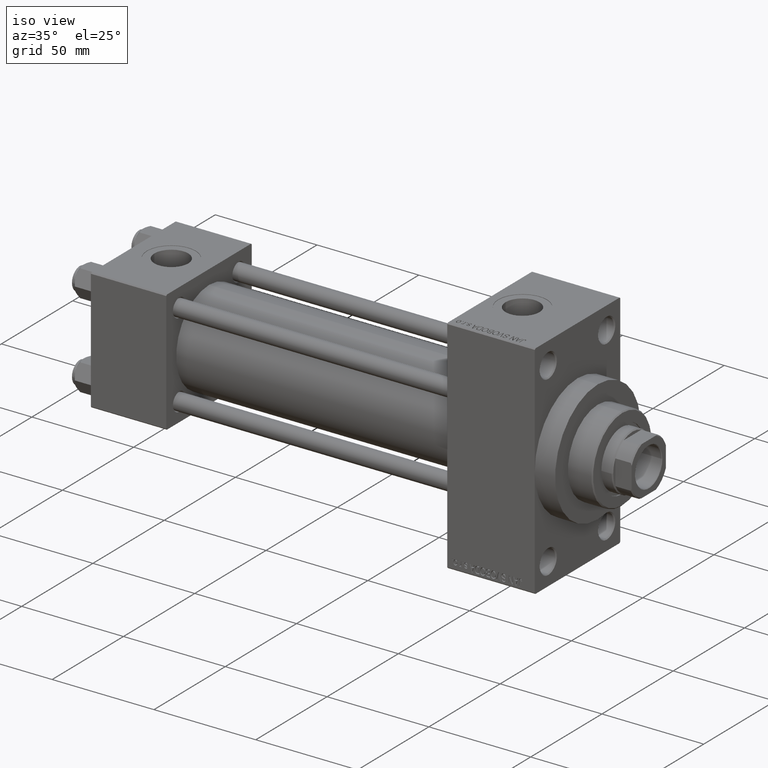
[diagram: clean part render]
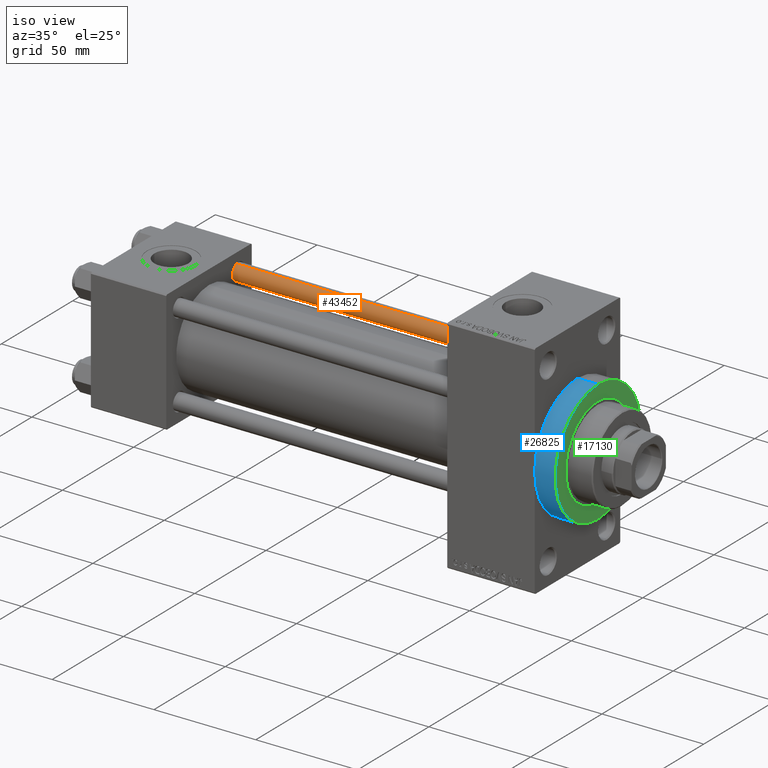
[diagram: same view with three faces highlighted in distinct colors, each labeled with its STEP entity id]
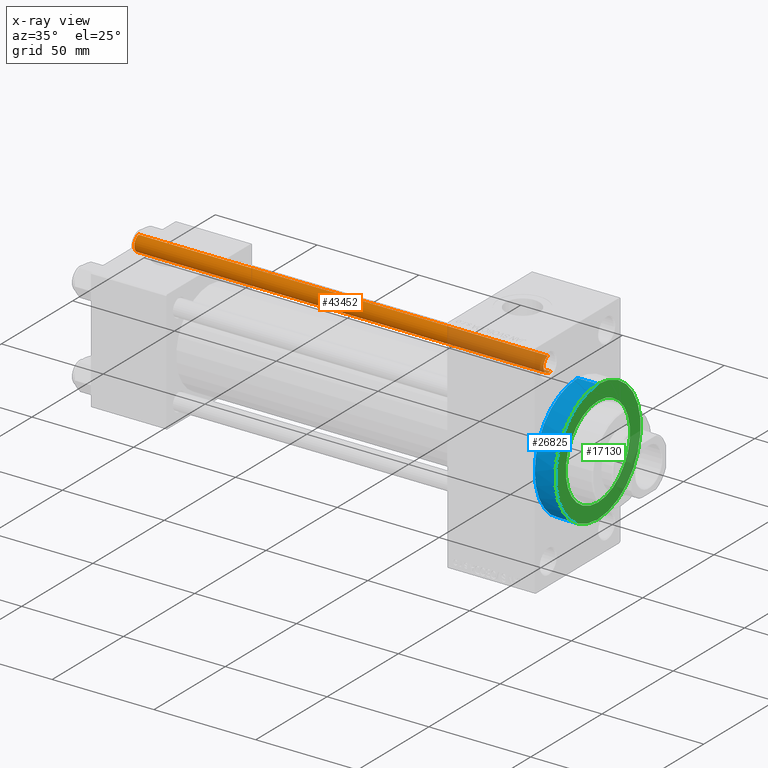
[diagram: x-ray of the same camera — body ghosted, the three highlighted faces saturated]
A machine part, iso view with three faces highlighted in distinct colors.
The next image is the same camera in x-ray (body ghosted, the three faces saturated) — at least one of them is partly hidden behind the body in this view.
Their STEP definitions:

[orange] entity #43452 — the highlighted cylindrical surface (edge-blend (fillet) strip) has radius 4 mm, axis along (-1, -0, 0).
#5035 = EDGE_CURVE ( 'NONE', #46889, #38912, #5921, .T. ) ;
#5472 = CARTESIAN_POINT ( 'NONE',  ( -4.000000000000000000, 0.000000000000000000, 0.5000000000000004441 ) ) ;
#5921 = LINE ( 'NONE', #17620, #16634 ) ;
#7106 = VERTEX_POINT ( 'NONE', #5472 ) ;
#7474 = ORIENTED_EDGE ( 'NONE', *, *, #36543, .T. ) ;
#9608 = VERTEX_POINT ( 'NONE', #21591 ) ;
#10151 = CIRCLE ( 'NONE', #32423, 4.000000000000000000 ) ;
#10990 = CARTESIAN_POINT ( 'NONE',  ( 0.000000000000000000, 0.000000000000000000, 0.5000000000000004441 ) ) ;
#11949 = LINE ( 'NONE', #26161, #46271 ) ;
#16634 = VECTOR ( 'NONE', #40046, 1000.000000000000000 ) ;
#17620 = CARTESIAN_POINT ( 'NONE',  ( 4.000000000000000000, 4.898587196589412829E-16, 202.0000000000000000 ) ) ;
#17761 = DIRECTION ( 'NONE',  ( -1.000000000000000000, 0.000000000000000000, 0.000000000000000000 ) ) ;
#18006 = CARTESIAN_POINT ( 'NONE',  ( 0.000000000000000000, 0.000000000000000000, 202.0000000000000000 ) ) ;
#20993 = CYLINDRICAL_SURFACE ( 'NONE', #48913, 4.000000000000000000 ) ;
#21591 = CARTESIAN_POINT ( 'NONE',  ( -4.000000000000000000, 0.000000000000000000, 201.5000000000000000 ) ) ;
#21703 = DIRECTION ( 'NONE',  ( 1.000000000000000000, 0.000000000000000000, 0.000000000000000000 ) ) ;
#21734 = DIRECTION ( 'NONE',  ( 0.000000000000000000, 0.000000000000000000, -1.000000000000000000 ) ) ;
#21749 = ORIENTED_EDGE ( 'NONE', *, *, #5035, .F. ) ;
#21980 = CARTESIAN_POINT ( 'NONE',  ( 0.000000000000000000, 0.000000000000000000, 201.5000000000000000 ) ) ;
#22029 = EDGE_CURVE ( 'NONE', #46889, #9608, #10151, .T. ) ;
#24743 = FACE_OUTER_BOUND ( 'NONE', #33723, .T. ) ;
#26038 = AXIS2_PLACEMENT_3D ( 'NONE', #10990, #37648, #21703 ) ;
#26161 = CARTESIAN_POINT ( 'NONE',  ( -4.000000000000000000, 0.000000000000000000, 202.0000000000000000 ) ) ;
#29085 = CARTESIAN_POINT ( 'NONE',  ( 4.000000000000000000, 4.898587196589412829E-16, 0.5000000000000004441 ) ) ;
#29926 = ORIENTED_EDGE ( 'NONE', *, *, #49115, .T. ) ;
#30143 = ORIENTED_EDGE ( 'NONE', *, *, #22029, .T. ) ;
#32233 = DIRECTION ( 'NONE',  ( -0.000000000000000000, -0.000000000000000000, -1.000000000000000000 ) ) ;
#32423 = AXIS2_PLACEMENT_3D ( 'NONE', #21980, #21734, #36949 ) ;
#33199 = CIRCLE ( 'NONE', #26038, 4.000000000000000000 ) ;
#33723 = EDGE_LOOP ( 'NONE', ( #21749, #30143, #7474, #29926 ) ) ;
#36543 = EDGE_CURVE ( 'NONE', #9608, #7106, #11949, .T. ) ;
#36949 = DIRECTION ( 'NONE',  ( 1.000000000000000000, 0.000000000000000000, 0.000000000000000000 ) ) ;
#37648 = DIRECTION ( 'NONE',  ( -0.000000000000000000, -0.000000000000000000, 1.000000000000000000 ) ) ;
#37871 = DIRECTION ( 'NONE',  ( -0.000000000000000000, -0.000000000000000000, -1.000000000000000000 ) ) ;
#38912 = VERTEX_POINT ( 'NONE', #29085 ) ;
#40046 = DIRECTION ( 'NONE',  ( -0.000000000000000000, -0.000000000000000000, -1.000000000000000000 ) ) ;
#43452 = ADVANCED_FACE ( 'NONE', ( #24743 ), #20993, .T. ) ;
#43929 = CARTESIAN_POINT ( 'NONE',  ( 4.000000000000000000, 4.898587196589412829E-16, 201.5000000000000000 ) ) ;
#46271 = VECTOR ( 'NONE', #37871, 1000.000000000000000 ) ;
#46889 = VERTEX_POINT ( 'NONE', #43929 ) ;
#48913 = AXIS2_PLACEMENT_3D ( 'NONE', #18006, #32233, #17761 ) ;
#49115 = EDGE_CURVE ( 'NONE', #7106, #38912, #33199, .T. ) ;

[blue] entity #26825 — the highlighted cylindrical surface (partial cylindrical patch) has radius 30 mm, axis along (-1, -0, -0).
#120 = VERTEX_POINT ( 'NONE', #15388 ) ;
#861 = EDGE_CURVE ( 'NONE', #29611, #120, #34186, .T. ) ;
#1431 = CARTESIAN_POINT ( 'NONE',  ( 228.0000000000000284, 3.673940397442059178E-15, -30.00000000000000000 ) ) ;
#1857 = CARTESIAN_POINT ( 'NONE',  ( 228.0000000000000284, 3.673940397442059178E-15, -30.00000000000000000 ) ) ;
#3391 = CARTESIAN_POINT ( 'NONE',  ( 218.0000000000000284, -30.00000000000000000, 0.000000000000000000 ) ) ;
#3956 = VERTEX_POINT ( 'NONE', #1431 ) ;
#4637 = VERTEX_POINT ( 'NONE', #4749 ) ;
#4749 = CARTESIAN_POINT ( 'NONE',  ( 218.0000000000000284, 0.000000000000000000, 30.00000000000000000 ) ) ;
#6215 = AXIS2_PLACEMENT_3D ( 'NONE', #18363, #33570, #10881 ) ;
#6702 = AXIS2_PLACEMENT_3D ( 'NONE', #9353, #47955, #9594 ) ;
#8446 = DIRECTION ( 'NONE',  ( 1.000000000000000000, 0.000000000000000000, 0.000000000000000000 ) ) ;
#8640 = ORIENTED_EDGE ( 'NONE', *, *, #861, .T. ) ;
#8769 = AXIS2_PLACEMENT_3D ( 'NONE', #16670, #39592, #20648 ) ;
#9169 = EDGE_CURVE ( 'NONE', #25987, #4637, #24163, .T. ) ;
#9346 = ORIENTED_EDGE ( 'NONE', *, *, #16238, .F. ) ;
#9353 = CARTESIAN_POINT ( 'NONE',  ( 228.0000000000000284, 0.000000000000000000, 0.000000000000000000 ) ) ;
#9594 = DIRECTION ( 'NONE',  ( 0.000000000000000000, 0.000000000000000000, -1.000000000000000000 ) ) ;
#10094 = EDGE_CURVE ( 'NONE', #25987, #3956, #48067, .T. ) ;
#10881 = DIRECTION ( 'NONE',  ( 0.000000000000000000, 0.000000000000000000, -1.000000000000000000 ) ) ;
#12465 = DIRECTION ( 'NONE',  ( -1.000000000000000000, -0.000000000000000000, -0.000000000000000000 ) ) ;
#13194 = CARTESIAN_POINT ( 'NONE',  ( 228.0000000000000284, 0.000000000000000000, 30.00000000000000000 ) ) ;
#14158 = EDGE_CURVE ( 'NONE', #4637, #29611, #41058, .T. ) ;
#15388 = CARTESIAN_POINT ( 'NONE',  ( 218.0000000000000284, 3.673940397442059178E-15, -30.00000000000000000 ) ) ;
#16238 = EDGE_CURVE ( 'NONE', #3956, #120, #39746, .T. ) ;
#16670 = CARTESIAN_POINT ( 'NONE',  ( 228.0000000000000284, 0.000000000000000000, 0.000000000000000000 ) ) ;
#18363 = CARTESIAN_POINT ( 'NONE',  ( 218.0000000000000284, 0.000000000000000000, 0.000000000000000000 ) ) ;
#20648 = DIRECTION ( 'NONE',  ( 0.000000000000000000, 0.000000000000000000, 1.000000000000000000 ) ) ;
#24163 = LINE ( 'NONE', #13194, #41662 ) ;
#25987 = VERTEX_POINT ( 'NONE', #42772 ) ;
#26076 = ORIENTED_EDGE ( 'NONE', *, *, #14158, .T. ) ;
#26793 = VECTOR ( 'NONE', #44219, 1000.000000000000000 ) ;
#26825 = ADVANCED_FACE ( 'NONE', ( #35374 ), #35616, .T. ) ;
#28410 = EDGE_LOOP ( 'NONE', ( #9346, #41275, #35457, #26076, #8640 ) ) ;
#29611 = VERTEX_POINT ( 'NONE', #3391 ) ;
#31865 = DIRECTION ( 'NONE',  ( 0.000000000000000000, 0.000000000000000000, -1.000000000000000000 ) ) ;
#33570 = DIRECTION ( 'NONE',  ( 1.000000000000000000, 0.000000000000000000, 0.000000000000000000 ) ) ;
#34186 = CIRCLE ( 'NONE', #6215, 30.00000000000000000 ) ;
#34862 = CARTESIAN_POINT ( 'NONE',  ( 218.0000000000000284, 0.000000000000000000, 0.000000000000000000 ) ) ;
#35374 = FACE_OUTER_BOUND ( 'NONE', #28410, .T. ) ;
#35457 = ORIENTED_EDGE ( 'NONE', *, *, #9169, .T. ) ;
#35616 = CYLINDRICAL_SURFACE ( 'NONE', #8769, 30.00000000000000000 ) ;
#39592 = DIRECTION ( 'NONE',  ( -1.000000000000000000, -0.000000000000000000, -0.000000000000000000 ) ) ;
#39746 = LINE ( 'NONE', #1857, #26793 ) ;
#41058 = CIRCLE ( 'NONE', #45033, 30.00000000000000000 ) ;
#41275 = ORIENTED_EDGE ( 'NONE', *, *, #10094, .F. ) ;
#41662 = VECTOR ( 'NONE', #12465, 1000.000000000000000 ) ;
#42772 = CARTESIAN_POINT ( 'NONE',  ( 228.0000000000000284, 0.000000000000000000, 30.00000000000000000 ) ) ;
#44219 = DIRECTION ( 'NONE',  ( -1.000000000000000000, -0.000000000000000000, -0.000000000000000000 ) ) ;
#45033 = AXIS2_PLACEMENT_3D ( 'NONE', #34862, #8446, #31865 ) ;
#47955 = DIRECTION ( 'NONE',  ( 1.000000000000000000, 0.000000000000000000, 0.000000000000000000 ) ) ;
#48067 = CIRCLE ( 'NONE', #6702, 30.00000000000000000 ) ;

[green] entity #17130 — the highlighted planar face has unit normal (1, 0, 0).
#589 = CARTESIAN_POINT ( 'NONE',  ( 228.0000000000000284, 0.000000000000000000, 0.000000000000000000 ) ) ;
#1431 = CARTESIAN_POINT ( 'NONE',  ( 228.0000000000000284, 3.673940397442059178E-15, -30.00000000000000000 ) ) ;
#1662 = ORIENTED_EDGE ( 'NONE', *, *, #10094, .T. ) ;
#1892 = EDGE_CURVE ( 'NONE', #3956, #25987, #21316, .T. ) ;
#2844 = VERTEX_POINT ( 'NONE', #26065 ) ;
#3956 = VERTEX_POINT ( 'NONE', #1431 ) ;
#4019 = AXIS2_PLACEMENT_3D ( 'NONE', #22523, #41715, #33761 ) ;
#5392 = EDGE_CURVE ( 'NONE', #2844, #7672, #12776, .T. ) ;
#5457 = FACE_OUTER_BOUND ( 'NONE', #39655, .T. ) ;
#6702 = AXIS2_PLACEMENT_3D ( 'NONE', #9353, #47955, #9594 ) ;
#7672 = VERTEX_POINT ( 'NONE', #9037 ) ;
#9037 = CARTESIAN_POINT ( 'NONE',  ( 228.0000000000000284, 2.755455298081545172E-15, 22.50000000000000355 ) ) ;
#9353 = CARTESIAN_POINT ( 'NONE',  ( 228.0000000000000284, 0.000000000000000000, 0.000000000000000000 ) ) ;
#9594 = DIRECTION ( 'NONE',  ( 0.000000000000000000, 0.000000000000000000, -1.000000000000000000 ) ) ;
#10094 = EDGE_CURVE ( 'NONE', #25987, #3956, #48067, .T. ) ;
#12590 = AXIS2_PLACEMENT_3D ( 'NONE', #589, #15796, #46186 ) ;
#12776 = CIRCLE ( 'NONE', #4019, 22.50000000000000355 ) ;
#15796 = DIRECTION ( 'NONE',  ( 1.000000000000000000, 0.000000000000000000, 0.000000000000000000 ) ) ;
#16910 = DIRECTION ( 'NONE',  ( 1.000000000000000000, 0.000000000000000000, 0.000000000000000000 ) ) ;
#17130 = ADVANCED_FACE ( 'NONE', ( #32123, #5457 ), #20646, .T. ) ;
#20646 = PLANE ( 'NONE',  #42767 ) ;
#21316 = CIRCLE ( 'NONE', #12590, 30.00000000000000000 ) ;
#22005 = CARTESIAN_POINT ( 'NONE',  ( 228.0000000000000284, 0.000000000000000000, 0.000000000000000000 ) ) ;
#22523 = CARTESIAN_POINT ( 'NONE',  ( 228.0000000000000284, 0.000000000000000000, 0.000000000000000000 ) ) ;
#25987 = VERTEX_POINT ( 'NONE', #42772 ) ;
#26065 = CARTESIAN_POINT ( 'NONE',  ( 228.0000000000000284, 0.000000000000000000, -22.50000000000000355 ) ) ;
#29127 = EDGE_LOOP ( 'NONE', ( #34501, #36728 ) ) ;
#32123 = FACE_BOUND ( 'NONE', #29127, .T. ) ;
#33761 = DIRECTION ( 'NONE',  ( 0.000000000000000000, 0.000000000000000000, -1.000000000000000000 ) ) ;
#34501 = ORIENTED_EDGE ( 'NONE', *, *, #5392, .F. ) ;
#36728 = ORIENTED_EDGE ( 'NONE', *, *, #41274, .F. ) ;
#36973 = DIRECTION ( 'NONE',  ( 1.000000000000000000, 0.000000000000000000, 0.000000000000000000 ) ) ;
#37702 = CIRCLE ( 'NONE', #44064, 22.50000000000000355 ) ;
#39655 = EDGE_LOOP ( 'NONE', ( #1662, #41827 ) ) ;
#41274 = EDGE_CURVE ( 'NONE', #7672, #2844, #37702, .T. ) ;
#41715 = DIRECTION ( 'NONE',  ( 1.000000000000000000, 0.000000000000000000, 0.000000000000000000 ) ) ;
#41827 = ORIENTED_EDGE ( 'NONE', *, *, #1892, .T. ) ;
#42767 = AXIS2_PLACEMENT_3D ( 'NONE', #43576, #16910, #42835 ) ;
#42772 = CARTESIAN_POINT ( 'NONE',  ( 228.0000000000000284, 0.000000000000000000, 30.00000000000000000 ) ) ;
#42835 = DIRECTION ( 'NONE',  ( 0.000000000000000000, 0.000000000000000000, -1.000000000000000000 ) ) ;
#43576 = CARTESIAN_POINT ( 'NONE',  ( 228.0000000000000284, 0.000000000000000000, 0.000000000000000000 ) ) ;
#44064 = AXIS2_PLACEMENT_3D ( 'NONE', #22005, #36973, #48192 ) ;
#46186 = DIRECTION ( 'NONE',  ( 0.000000000000000000, 0.000000000000000000, -1.000000000000000000 ) ) ;
#47955 = DIRECTION ( 'NONE',  ( 1.000000000000000000, 0.000000000000000000, 0.000000000000000000 ) ) ;
#48067 = CIRCLE ( 'NONE', #6702, 30.00000000000000000 ) ;
#48192 = DIRECTION ( 'NONE',  ( 0.000000000000000000, 0.000000000000000000, -1.000000000000000000 ) ) ;